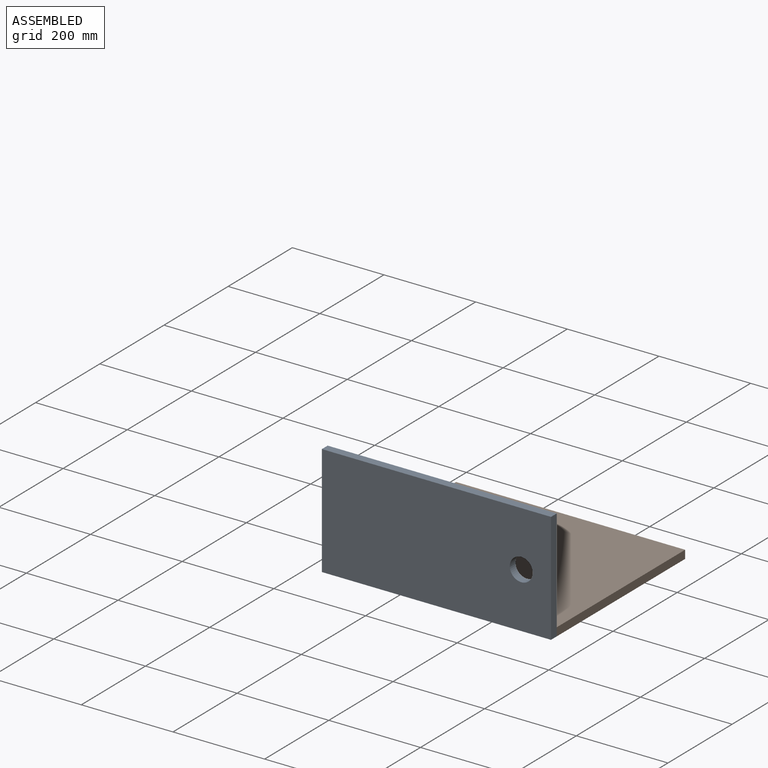
[diagram: assembled view]
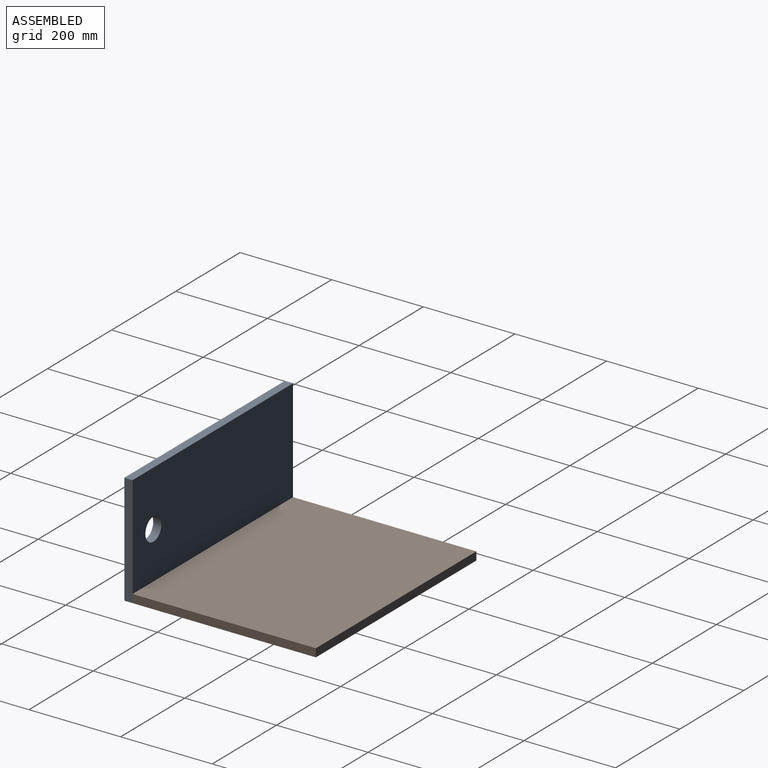
[diagram: assembled view, second angle]
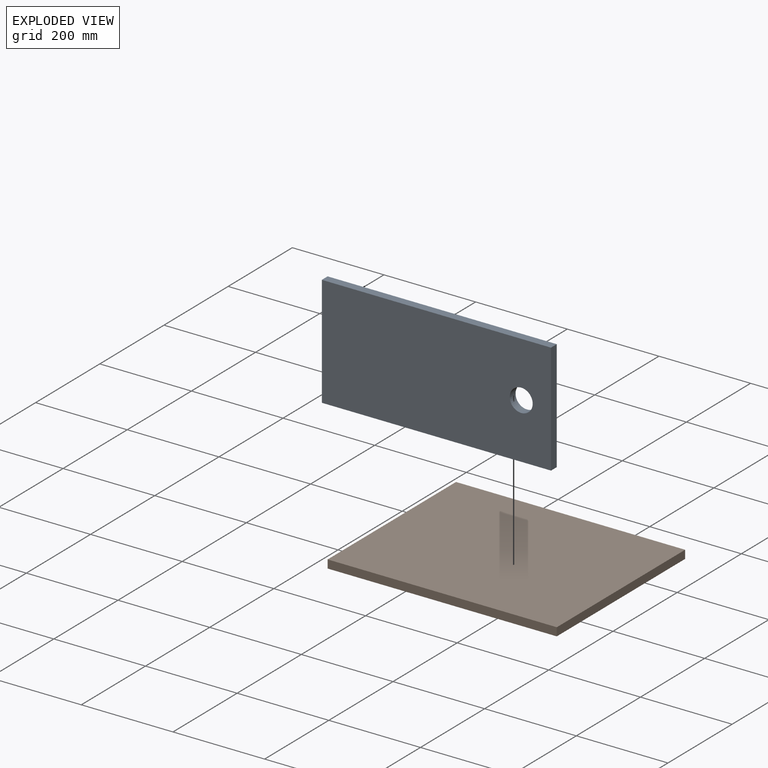
[diagram: exploded view]
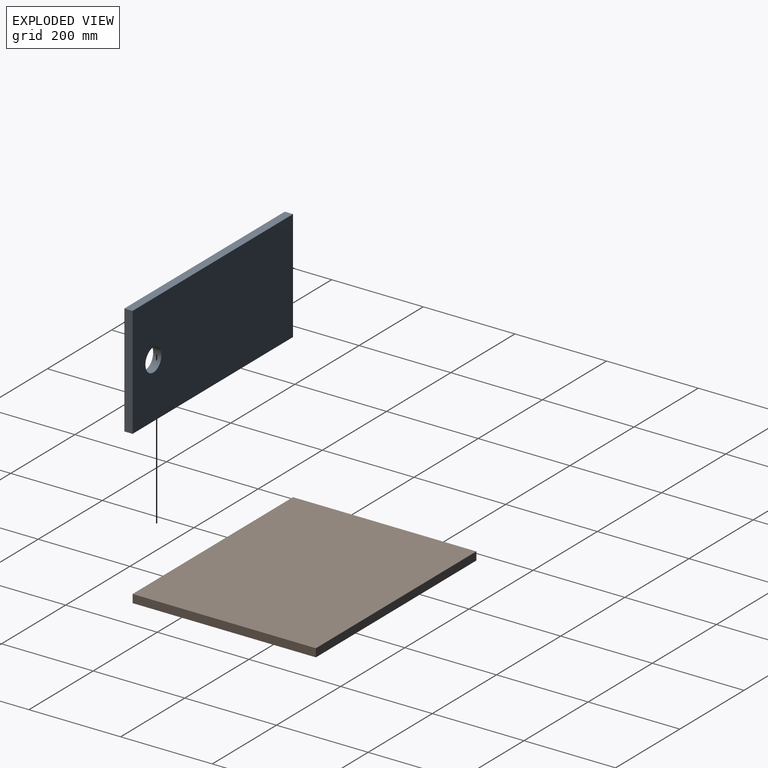
[diagram: exploded view, second angle]
ASSEMBLY  parts=2 mates=3
PART A: 7 faces, bbox 500x18x242.5 mm
  f0: plane 242.47x18mm, normal (-1,0,0), area 4364.5mm2, adj f1,f3,f4,f5
  f1: plane 500x18mm, normal (0,0,-1), area 9000mm2, adj f0,f2,f4,f5
  f2: plane 242.47x18mm, normal (1,0,0), area 4364.5mm2, adj f1,f3,f4,f5
  f3: plane 500x18mm, normal (0,0,1), area 9000mm2, adj f0,f2,f4,f5
  f4: plane 500x242.47mm, normal (0,-1,0), area 119272.7mm2, adj f0,f1,f2,f3,f6
  f5: plane 500x242.47mm, normal (0,1,0), area 119272.7mm2, adj f0,f1,f2,f3,f6
  f6: cylinder r=25mm len=50mm, axis (0,1,0), area 2827.4mm2, adj f4,f5
PART B: 6 faces, bbox 500x400x18 mm
  f0: plane 400x18mm, normal (1,0,0), area 7200mm2, adj f1,f3,f4,f5
  f1: plane 500x400mm, normal (0,0,-1), area 200000mm2, adj f0,f2,f4,f5
  f2: plane 400x18mm, normal (-1,0,0), area 7200mm2, adj f1,f3,f4,f5
  f3: plane 500x400mm, normal (0,0,1), area 200000mm2, adj f0,f2,f4,f5
  f4: plane 500x18mm, normal (0,1,0), area 9000mm2, adj f0,f1,f2,f3
  f5: plane 500x18mm, normal (0,-1,0), area 9000mm2, adj f0,f1,f2,f3
PLACE A t=(-156.93,106.18,80.01)mm fixed
PLACE B t=(-156.93,106.18,-144.46)mm
MATE planar B.f0 <-> A.f2  axis (1,0,0) through (343.07,306.18,89.01)mm
MATE planar B.f1 <-> A.f1  axis (0,0,-1) through (93.07,306.18,80.01)mm
MATE planar B.f5 <-> A.f5  axis (0,-1,0) through (93.07,106.18,89.01)mm
